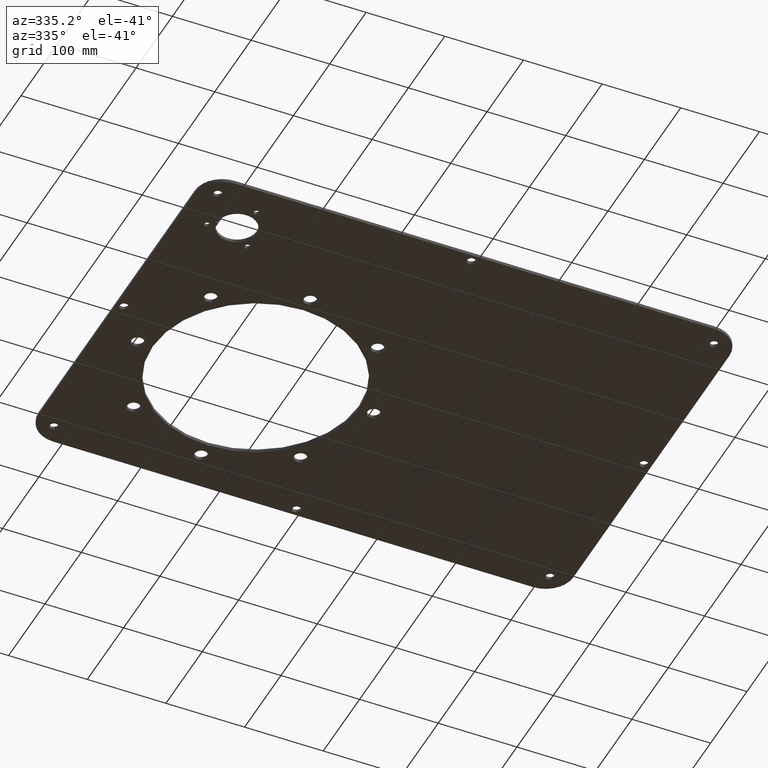
[diagram: clean part render]
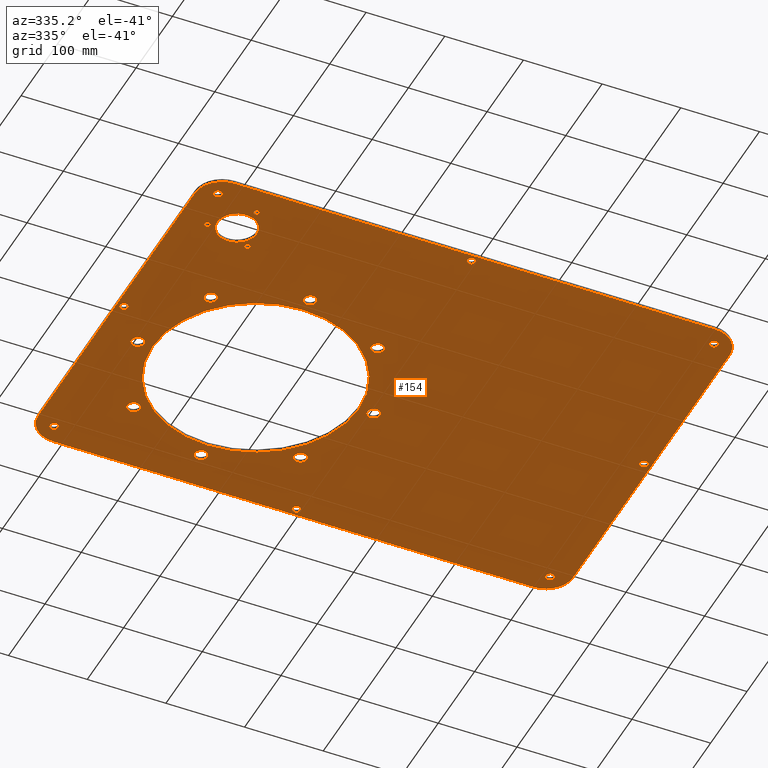
[diagram: same view with one face highlighted and labeled with its STEP entity id]
A machine part, auxiliary view. The second image highlights one B-rep face of the part: STEP entity #154.
In plain terms, the highlighted planar face has unit normal (0, 0, 1).
Its self-contained STEP definition (entity closure, byte-faithful):
#97=FACE_BOUND('',#263,.T.);
#98=FACE_BOUND('',#264,.T.);
#99=FACE_BOUND('',#265,.T.);
#100=FACE_BOUND('',#266,.T.);
#101=FACE_BOUND('',#267,.T.);
#102=FACE_BOUND('',#268,.T.);
#103=FACE_BOUND('',#269,.T.);
#104=FACE_BOUND('',#270,.T.);
#105=FACE_BOUND('',#271,.T.);
#106=FACE_BOUND('',#272,.T.);
#107=FACE_BOUND('',#273,.T.);
#108=FACE_BOUND('',#274,.T.);
#109=FACE_BOUND('',#275,.T.);
#110=FACE_BOUND('',#276,.T.);
#111=FACE_BOUND('',#277,.T.);
#112=FACE_BOUND('',#278,.T.);
#113=FACE_BOUND('',#279,.T.);
#114=FACE_BOUND('',#280,.T.);
#115=FACE_BOUND('',#281,.T.);
#116=FACE_BOUND('',#282,.T.);
#117=FACE_BOUND('',#283,.T.);
#123=PLANE('',#703);
#154=ADVANCED_FACE('',(#189,#97,#98,#99,#100,#101,#102,#103,#104,#105,#106,
#107,#108,#109,#110,#111,#112,#113,#114,#115,#116,#117),#123,.F.);
#189=FACE_OUTER_BOUND('',#262,.T.);
#262=EDGE_LOOP('',(#419,#420,#421,#422,#423,#424,#425,#426));
#263=EDGE_LOOP('',(#427));
#264=EDGE_LOOP('',(#428));
#265=EDGE_LOOP('',(#429));
#266=EDGE_LOOP('',(#430));
#267=EDGE_LOOP('',(#431));
#268=EDGE_LOOP('',(#432));
#269=EDGE_LOOP('',(#433));
#270=EDGE_LOOP('',(#434));
#271=EDGE_LOOP('',(#435));
#272=EDGE_LOOP('',(#436));
#273=EDGE_LOOP('',(#437));
#274=EDGE_LOOP('',(#438));
#275=EDGE_LOOP('',(#439));
#276=EDGE_LOOP('',(#440));
#277=EDGE_LOOP('',(#441));
#278=EDGE_LOOP('',(#442));
#279=EDGE_LOOP('',(#443));
#280=EDGE_LOOP('',(#444));
#281=EDGE_LOOP('',(#445));
#282=EDGE_LOOP('',(#446));
#283=EDGE_LOOP('',(#447));
#286=LINE('',#894,#302);
#290=LINE('',#906,#306);
#294=LINE('',#918,#310);
#298=LINE('',#1030,#314);
#302=VECTOR('',#714,1.);
#306=VECTOR('',#726,1.);
#310=VECTOR('',#738,1.);
#314=VECTOR('',#870,1.);
#419=ORIENTED_EDGE('',*,*,#506,.F.);
#420=ORIENTED_EDGE('',*,*,#568,.F.);
#421=ORIENTED_EDGE('',*,*,#525,.F.);
#422=ORIENTED_EDGE('',*,*,#522,.F.);
#423=ORIENTED_EDGE('',*,*,#519,.F.);
#424=ORIENTED_EDGE('',*,*,#516,.F.);
#425=ORIENTED_EDGE('',*,*,#513,.F.);
#426=ORIENTED_EDGE('',*,*,#510,.F.);
#427=ORIENTED_EDGE('',*,*,#567,.T.);
#428=ORIENTED_EDGE('',*,*,#565,.F.);
#429=ORIENTED_EDGE('',*,*,#563,.F.);
#430=ORIENTED_EDGE('',*,*,#561,.F.);
#431=ORIENTED_EDGE('',*,*,#559,.F.);
#432=ORIENTED_EDGE('',*,*,#557,.T.);
#433=ORIENTED_EDGE('',*,*,#555,.F.);
#434=ORIENTED_EDGE('',*,*,#553,.T.);
#435=ORIENTED_EDGE('',*,*,#551,.T.);
#436=ORIENTED_EDGE('',*,*,#549,.T.);
#437=ORIENTED_EDGE('',*,*,#547,.T.);
#438=ORIENTED_EDGE('',*,*,#545,.F.);
#439=ORIENTED_EDGE('',*,*,#543,.T.);
#440=ORIENTED_EDGE('',*,*,#541,.T.);
#441=ORIENTED_EDGE('',*,*,#539,.T.);
#442=ORIENTED_EDGE('',*,*,#537,.F.);
#443=ORIENTED_EDGE('',*,*,#535,.F.);
#444=ORIENTED_EDGE('',*,*,#533,.T.);
#445=ORIENTED_EDGE('',*,*,#531,.T.);
#446=ORIENTED_EDGE('',*,*,#529,.T.);
#447=ORIENTED_EDGE('',*,*,#571,.T.);
#448=VERTEX_POINT('',#886);
#449=VERTEX_POINT('',#887);
#452=VERTEX_POINT('',#895);
#454=VERTEX_POINT('',#901);
#456=VERTEX_POINT('',#907);
#458=VERTEX_POINT('',#913);
#460=VERTEX_POINT('',#919);
#462=VERTEX_POINT('',#925);
#465=VERTEX_POINT('',#933);
#467=VERTEX_POINT('',#938);
#469=VERTEX_POINT('',#943);
#471=VERTEX_POINT('',#948);
#473=VERTEX_POINT('',#953);
#475=VERTEX_POINT('',#958);
#477=VERTEX_POINT('',#963);
#479=VERTEX_POINT('',#968);
#481=VERTEX_POINT('',#973);
#483=VERTEX_POINT('',#978);
#485=VERTEX_POINT('',#983);
#487=VERTEX_POINT('',#988);
#489=VERTEX_POINT('',#993);
#491=VERTEX_POINT('',#998);
#493=VERTEX_POINT('',#1003);
#495=VERTEX_POINT('',#1008);
#497=VERTEX_POINT('',#1013);
#499=VERTEX_POINT('',#1018);
#501=VERTEX_POINT('',#1023);
#503=VERTEX_POINT('',#1028);
#505=VERTEX_POINT('',#1036);
#506=EDGE_CURVE('',#448,#449,#572,.T.);
#510=EDGE_CURVE('',#449,#452,#286,.T.);
#513=EDGE_CURVE('',#452,#454,#574,.T.);
#516=EDGE_CURVE('',#454,#456,#290,.T.);
#519=EDGE_CURVE('',#456,#458,#576,.T.);
#522=EDGE_CURVE('',#458,#460,#294,.T.);
#525=EDGE_CURVE('',#460,#462,#578,.T.);
#529=EDGE_CURVE('',#465,#465,#581,.T.);
#531=EDGE_CURVE('',#467,#467,#583,.T.);
#533=EDGE_CURVE('',#469,#469,#585,.T.);
#535=EDGE_CURVE('',#471,#471,#587,.T.);
#537=EDGE_CURVE('',#473,#473,#589,.T.);
#539=EDGE_CURVE('',#475,#475,#591,.T.);
#541=EDGE_CURVE('',#477,#477,#593,.T.);
#543=EDGE_CURVE('',#479,#479,#595,.T.);
#545=EDGE_CURVE('',#481,#481,#597,.T.);
#547=EDGE_CURVE('',#483,#483,#599,.T.);
#549=EDGE_CURVE('',#485,#485,#601,.T.);
#551=EDGE_CURVE('',#487,#487,#603,.T.);
#553=EDGE_CURVE('',#489,#489,#605,.T.);
#555=EDGE_CURVE('',#491,#491,#607,.T.);
#557=EDGE_CURVE('',#493,#493,#609,.T.);
#559=EDGE_CURVE('',#495,#495,#611,.T.);
#561=EDGE_CURVE('',#497,#497,#613,.T.);
#563=EDGE_CURVE('',#499,#499,#615,.T.);
#565=EDGE_CURVE('',#501,#501,#617,.T.);
#567=EDGE_CURVE('',#503,#503,#619,.T.);
#568=EDGE_CURVE('',#462,#448,#298,.T.);
#571=EDGE_CURVE('',#505,#505,#621,.T.);
#572=CIRCLE('',#623,35.);
#574=CIRCLE('',#627,35.);
#576=CIRCLE('',#631,35.);
#578=CIRCLE('',#635,35.);
#581=CIRCLE('',#639,5.25);
#583=CIRCLE('',#642,5.25);
#585=CIRCLE('',#645,5.25);
#587=CIRCLE('',#648,25.);
#589=CIRCLE('',#651,3.5);
#591=CIRCLE('',#654,8.);
#593=CIRCLE('',#657,8.);
#595=CIRCLE('',#660,8.);
#597=CIRCLE('',#663,5.25);
#599=CIRCLE('',#666,8.);
#601=CIRCLE('',#669,8.);
#603=CIRCLE('',#672,8.);
#605=CIRCLE('',#675,8.);
#607=CIRCLE('',#678,5.25);
#609=CIRCLE('',#681,5.25);
#611=CIRCLE('',#684,5.25);
#613=CIRCLE('',#687,5.25);
#615=CIRCLE('',#690,3.5);
#617=CIRCLE('',#693,3.5);
#619=CIRCLE('',#696,8.);
#621=CIRCLE('',#700,131.);
#623=AXIS2_PLACEMENT_3D('',#885,#706,#707);
#627=AXIS2_PLACEMENT_3D('',#900,#719,#720);
#631=AXIS2_PLACEMENT_3D('',#912,#731,#732);
#635=AXIS2_PLACEMENT_3D('',#924,#743,#744);
#639=AXIS2_PLACEMENT_3D('',#932,#752,#753);
#642=AXIS2_PLACEMENT_3D('',#937,#758,#759);
#645=AXIS2_PLACEMENT_3D('',#942,#764,#765);
#648=AXIS2_PLACEMENT_3D('',#947,#770,#771);
#651=AXIS2_PLACEMENT_3D('',#952,#776,#777);
#654=AXIS2_PLACEMENT_3D('',#957,#782,#783);
#657=AXIS2_PLACEMENT_3D('',#962,#788,#789);
#660=AXIS2_PLACEMENT_3D('',#967,#794,#795);
#663=AXIS2_PLACEMENT_3D('',#972,#800,#801);
#666=AXIS2_PLACEMENT_3D('',#977,#806,#807);
#669=AXIS2_PLACEMENT_3D('',#982,#812,#813);
#672=AXIS2_PLACEMENT_3D('',#987,#818,#819);
#675=AXIS2_PLACEMENT_3D('',#992,#824,#825);
#678=AXIS2_PLACEMENT_3D('',#997,#830,#831);
#681=AXIS2_PLACEMENT_3D('',#1002,#836,#837);
#684=AXIS2_PLACEMENT_3D('',#1007,#842,#843);
#687=AXIS2_PLACEMENT_3D('',#1012,#848,#849);
#690=AXIS2_PLACEMENT_3D('',#1017,#854,#855);
#693=AXIS2_PLACEMENT_3D('',#1022,#860,#861);
#696=AXIS2_PLACEMENT_3D('',#1027,#866,#867);
#700=AXIS2_PLACEMENT_3D('',#1035,#876,#877);
#703=AXIS2_PLACEMENT_3D('',#1039,#882,#883);
#706=DIRECTION('',(0.,0.,1.));
#707=DIRECTION('',(0.999999999999999,0.,0.));
#714=DIRECTION('',(0.,1.,0.));
#719=DIRECTION('',(0.,0.,1.));
#720=DIRECTION('',(0.999999999999999,0.,0.));
#726=DIRECTION('',(-1.,0.,0.));
#731=DIRECTION('',(0.,0.,1.));
#732=DIRECTION('',(0.999999999999999,0.,0.));
#738=DIRECTION('',(0.,-1.,0.));
#743=DIRECTION('',(0.,0.,1.));
#744=DIRECTION('',(0.999999999999999,0.,0.));
#752=DIRECTION('',(0.,0.,1.));
#753=DIRECTION('',(1.,0.,0.));
#758=DIRECTION('',(0.,0.,1.));
#759=DIRECTION('',(-0.999999999999996,0.,0.));
#764=DIRECTION('',(0.,0.,1.));
#765=DIRECTION('',(0.999999999999996,0.,0.));
#770=DIRECTION('',(0.,0.,-1.));
#771=DIRECTION('',(-1.,0.,0.));
#776=DIRECTION('',(0.,0.,-1.));
#777=DIRECTION('',(0.25881904510253,-0.96592582628904,0.));
#782=DIRECTION('',(0.,0.,1.));
#783=DIRECTION('',(-0.707106781186545,0.707106781186573,0.));
#788=DIRECTION('',(0.,0.,1.));
#789=DIRECTION('',(0.707106781186548,-0.707106781186573,0.));
#794=DIRECTION('',(0.,0.,1.));
#795=DIRECTION('',(-1.,0.,0.));
#800=DIRECTION('',(0.,0.,-1.));
#801=DIRECTION('',(1.,0.,0.));
#806=DIRECTION('',(0.,0.,1.));
#807=DIRECTION('',(1.,0.,0.));
#812=DIRECTION('',(0.,0.,1.));
#813=DIRECTION('',(-0.707106781186545,-0.707106781186573,0.));
#818=DIRECTION('',(0.,0.,1.));
#819=DIRECTION('',(0.707106781186548,0.707106781186573,0.));
#824=DIRECTION('',(0.,0.,1.));
#825=DIRECTION('',(0.,-1.,0.));
#830=DIRECTION('',(0.,0.,-1.));
#831=DIRECTION('',(-0.999999999999996,0.,0.));
#836=DIRECTION('',(0.,0.,1.));
#837=DIRECTION('',(0.999999999999996,0.,0.));
#842=DIRECTION('',(0.,0.,-1.));
#843=DIRECTION('',(-0.999999999999996,0.,0.));
#848=DIRECTION('',(0.,0.,-1.));
#849=DIRECTION('',(0.999999999999996,0.,0.));
#854=DIRECTION('',(0.,0.,-1.));
#855=DIRECTION('',(-0.965925826289071,0.258819045102499,0.));
#860=DIRECTION('',(0.,0.,-1.));
#861=DIRECTION('',(0.707106781186549,0.707106781186541,0.));
#866=DIRECTION('',(0.,0.,1.));
#867=DIRECTION('',(0.,1.,0.));
#870=DIRECTION('',(1.,0.,0.));
#876=DIRECTION('',(0.,0.,1.));
#877=DIRECTION('',(1.,0.,0.));
#882=DIRECTION('',(0.,0.,1.));
#883=DIRECTION('',(1.,0.,0.));
#885=CARTESIAN_POINT('',(305.,-3215.,0.));
#886=CARTESIAN_POINT('',(305.,-3250.,0.));
#887=CARTESIAN_POINT('',(340.,-3215.,0.));
#894=CARTESIAN_POINT('',(340.,-3215.,0.));
#895=CARTESIAN_POINT('',(340.,-2785.,0.));
#900=CARTESIAN_POINT('',(305.,-2785.,0.));
#901=CARTESIAN_POINT('',(305.,-2750.,0.));
#906=CARTESIAN_POINT('',(305.,-2750.,0.));
#907=CARTESIAN_POINT('',(-305.,-2750.,0.));
#912=CARTESIAN_POINT('',(-305.,-2785.,0.));
#913=CARTESIAN_POINT('',(-340.,-2785.,0.));
#918=CARTESIAN_POINT('',(-340.,-2785.,0.));
#919=CARTESIAN_POINT('',(-340.,-3215.,0.));
#924=CARTESIAN_POINT('',(-305.,-3215.,0.));
#925=CARTESIAN_POINT('',(-305.,-3250.,0.));
#932=CARTESIAN_POINT('',(0.,-2759.5,0.));
#933=CARTESIAN_POINT('',(5.25,-2759.5,0.));
#937=CARTESIAN_POINT('',(315.370057685089,-3225.37005768509,0.));
#938=CARTESIAN_POINT('',(310.120057685089,-3225.37005768509,0.));
#942=CARTESIAN_POINT('',(-315.370057685089,-2774.62994231491,0.));
#943=CARTESIAN_POINT('',(-310.120057685089,-2774.62994231491,0.));
#947=CARTESIAN_POINT('',(-270.,-3180.,0.));
#948=CARTESIAN_POINT('',(-295.,-3180.,0.));
#952=CARTESIAN_POINT('',(-260.941333421412,-3213.80740392012,0.));
#953=CARTESIAN_POINT('',(-260.035466763553,-3217.18814431213,0.));
#957=CARTESIAN_POINT('',(-246.066017177982,-2843.93398282201,0.));
#958=CARTESIAN_POINT('',(-251.722871427474,-2838.27712857252,0.));
#962=CARTESIAN_POINT('',(-33.9339828220151,-3056.06601717799,0.));
#963=CARTESIAN_POINT('',(-28.2771285725227,-3061.72287142748,0.));
#967=CARTESIAN_POINT('',(-289.999999999999,-2950.,0.));
#968=CARTESIAN_POINT('',(-297.999999999999,-2950.,0.));
#972=CARTESIAN_POINT('',(0.,-3240.5,0.));
#973=CARTESIAN_POINT('',(5.25,-3240.5,0.));
#977=CARTESIAN_POINT('',(10.0000000000041,-2950.,0.));
#978=CARTESIAN_POINT('',(18.0000000000041,-2950.,0.));
#982=CARTESIAN_POINT('',(-246.066017177985,-3056.06601717798,0.));
#983=CARTESIAN_POINT('',(-251.722871427477,-3061.72287142748,0.));
#987=CARTESIAN_POINT('',(-33.9339828220178,-2843.93398282202,0.));
#988=CARTESIAN_POINT('',(-28.2771285725254,-2838.27712857253,0.));
#992=CARTESIAN_POINT('',(-140.000000000708,-3099.99999999997,0.));
#993=CARTESIAN_POINT('',(-140.000000000708,-3107.99999999997,0.));
#997=CARTESIAN_POINT('',(330.5,-3000.,0.));
#998=CARTESIAN_POINT('',(325.25,-3000.,0.));
#1002=CARTESIAN_POINT('',(-330.5,-3000.,0.));
#1003=CARTESIAN_POINT('',(-325.25,-3000.,0.));
#1007=CARTESIAN_POINT('',(315.370057685089,-2774.62994231491,0.));
#1008=CARTESIAN_POINT('',(310.120057685089,-2774.62994231491,0.));
#1012=CARTESIAN_POINT('',(-315.370057685089,-3225.37005768509,0.));
#1013=CARTESIAN_POINT('',(-310.120057685089,-3225.37005768509,0.));
#1017=CARTESIAN_POINT('',(-303.807403920117,-3170.94133342141,0.));
#1018=CARTESIAN_POINT('',(-307.188144312129,-3170.03546676355,0.));
#1022=CARTESIAN_POINT('',(-245.251262658473,-3155.25126265847,0.));
#1023=CARTESIAN_POINT('',(-242.77638892432,-3152.77638892432,0.));
#1027=CARTESIAN_POINT('',(-139.999999999997,-2800.,0.));
#1028=CARTESIAN_POINT('',(-139.999999999997,-2792.,0.));
#1030=CARTESIAN_POINT('',(-305.,-3250.,0.));
#1035=CARTESIAN_POINT('',(-140.,-2950.,0.));
#1036=CARTESIAN_POINT('',(-9.00000000000001,-2950.,0.));
#1039=CARTESIAN_POINT('',(305.,-3215.,0.));